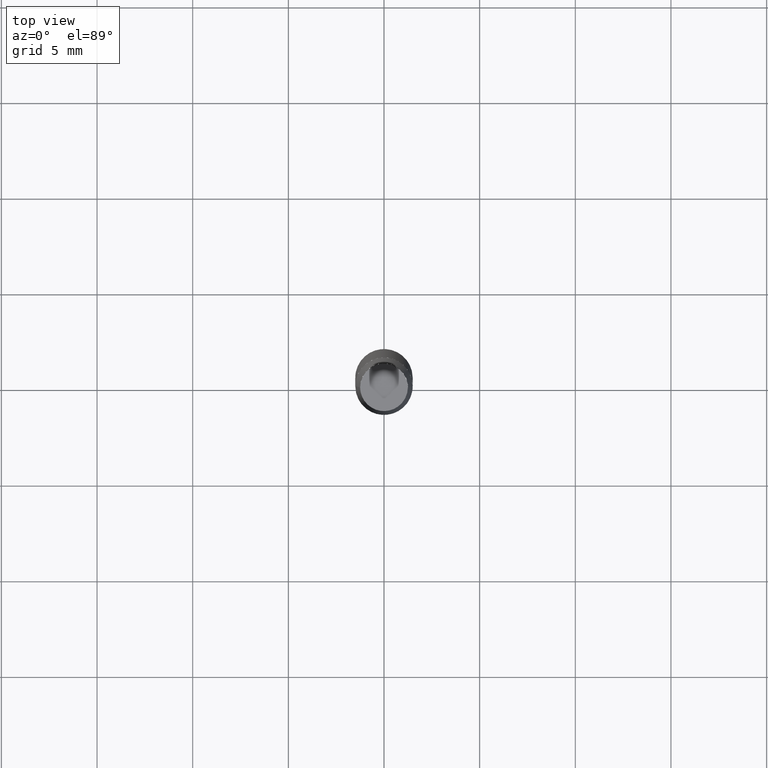
[diagram: clean part render]
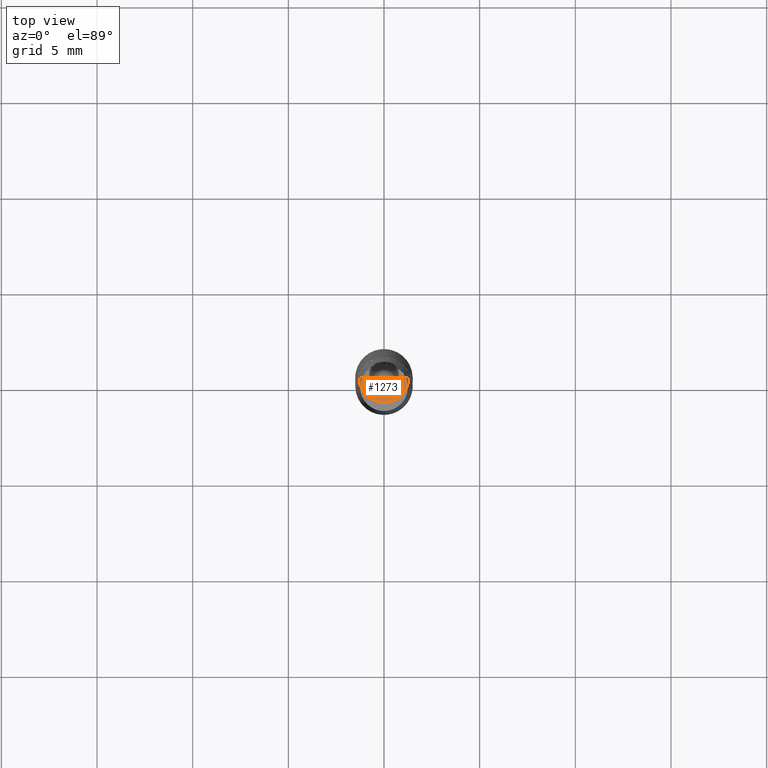
[diagram: same view with one face highlighted and labeled with its STEP entity id]
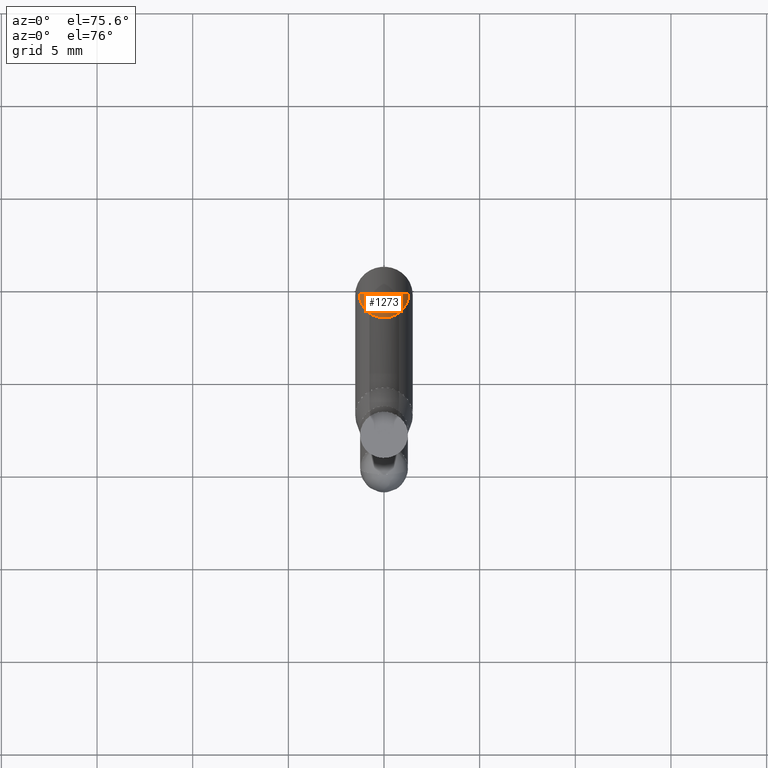
[diagram: same view with one face highlighted and labeled with its STEP entity id]
A machine part, top view. The second image highlights one B-rep face of the part: STEP entity #1273.
A second angle (auxiliary view) of the same face is appended — the face is thin or edge-on in the first view.
In plain terms, the highlighted face is a freeform B-spline surface patch.
Its self-contained STEP definition (entity closure, byte-faithful):
#874=CARTESIAN_POINT('',(1.3,0.0,25.5));
#878=CARTESIAN_POINT('',(-1.3,0.0,25.5));
#879=CARTESIAN_POINT('',(0.0,0.0,25.5));
#892=CARTESIAN_POINT('',(-1.3,-1.3,25.5));
#893=CARTESIAN_POINT('',(0.0,-1.3,25.5));
#894=CARTESIAN_POINT('',(1.3,-1.3,25.5));
#1258=(
BOUNDED_SURFACE()
B_SPLINE_SURFACE(1,2,(
(#878,#892,#893,#894,#874),
(#879,#879,#879,#879,#879)
), .UNSPECIFIED.,.F.,.F.,.F.)
B_SPLINE_SURFACE_WITH_KNOTS((2,2),(3,2,3),(
0.0,1.0),(
0.0,0.5,1.0), .UNSPECIFIED.)
GEOMETRIC_REPRESENTATION_ITEM()
RATIONAL_B_SPLINE_SURFACE(((1.0,0.707106781187,1.0,0.707106781187,1.0),
(1.0,0.707106781187,1.0,0.707106781187,1.0)
))
REPRESENTATION_ITEM('')
SURFACE()
);
#1259=(
BOUNDED_CURVE()
B_SPLINE_CURVE(2,(#874,#894,#893,#892,#878),.UNSPECIFIED.,.F.,.F.)
B_SPLINE_CURVE_WITH_KNOTS((3,2,3),
(0.0,0.5,1.0),.UNSPECIFIED.)
CURVE()
GEOMETRIC_REPRESENTATION_ITEM()
RATIONAL_B_SPLINE_CURVE((1.0,0.707106781187,1.0,0.707106781187,1.0))
REPRESENTATION_ITEM('')
);
#1260=(
BOUNDED_CURVE()
B_SPLINE_CURVE(1,(#878,#879),.UNSPECIFIED.,.F.,.F.)
B_SPLINE_CURVE_WITH_KNOTS((2,2),
(0.0,1.0),.UNSPECIFIED.)
CURVE()
GEOMETRIC_REPRESENTATION_ITEM()
RATIONAL_B_SPLINE_CURVE((1.0,1.0))
REPRESENTATION_ITEM('')
);
#1261=(
BOUNDED_CURVE()
B_SPLINE_CURVE(1,(#879,#874),.UNSPECIFIED.,.F.,.F.)
B_SPLINE_CURVE_WITH_KNOTS((2,2),
(0.0,1.0),.UNSPECIFIED.)
CURVE()
GEOMETRIC_REPRESENTATION_ITEM()
RATIONAL_B_SPLINE_CURVE((1.0,1.0))
REPRESENTATION_ITEM('')
);
#1262=VERTEX_POINT('',#874);
#1263=VERTEX_POINT('',#878);
#1264=VERTEX_POINT('',#879);
#1265=EDGE_CURVE('',#1262,#1263,#1259,.T.);
#1266=EDGE_CURVE('',#1263,#1264,#1260,.T.);
#1267=EDGE_CURVE('',#1264,#1262,#1261,.T.);
#1268=ORIENTED_EDGE('',*,*,#1265,.T.);
#1269=ORIENTED_EDGE('',*,*,#1266,.T.);
#1270=ORIENTED_EDGE('',*,*,#1267,.T.);
#1271=EDGE_LOOP('',(#1268,#1269,#1270));
#1272=FACE_OUTER_BOUND('',#1271,.T.);
#1273=ADVANCED_FACE('',(#1272),#1258,.T.);